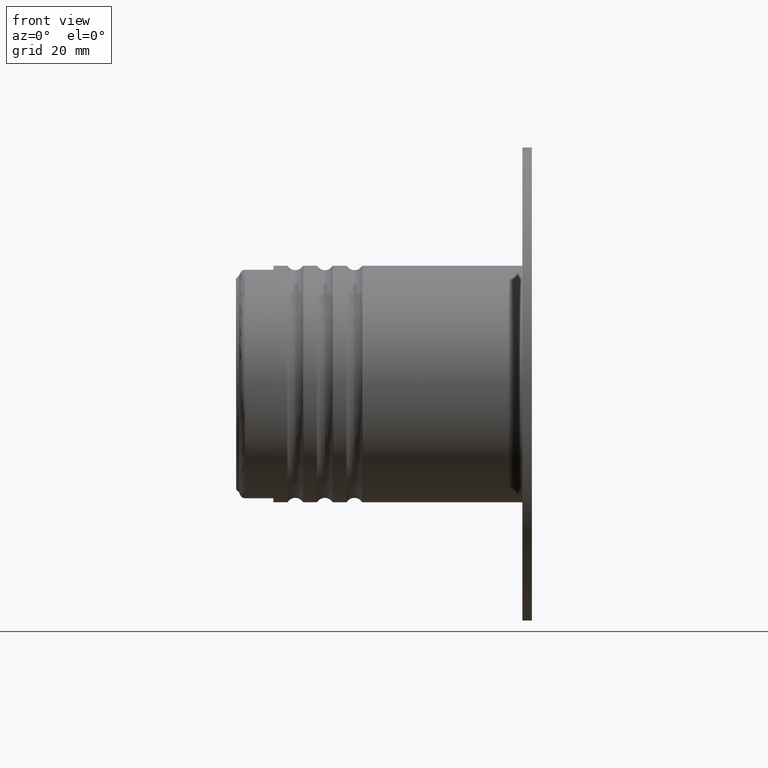
[diagram: clean part render]
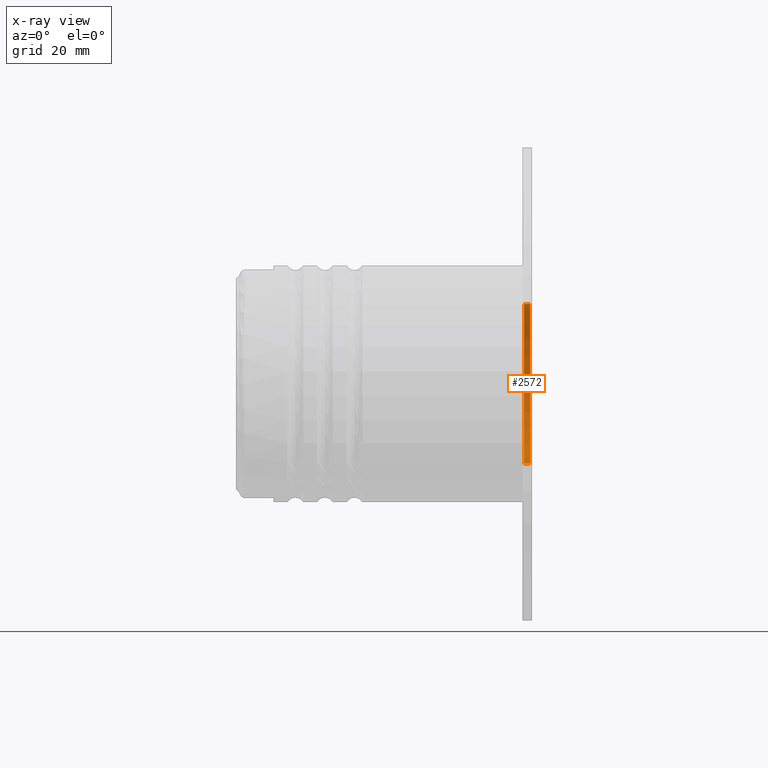
[diagram: x-ray — body ghosted, one internal face saturated and labeled with its STEP entity id]
A machine part, front view, then the same camera in x-ray: the body is ghosted and one INTERNAL B-rep face — a face not visible from any outside direction — is saturated and labeled: STEP entity #2572.
In plain terms, the highlighted cylindrical surface (partial cylindrical patch) has radius 13.5 mm, axis along (1, 0, 0).
Its self-contained STEP definition (entity closure, byte-faithful):
#11 = VERTEX_POINT ( 'NONE', #1303 ) ;
#161 = EDGE_LOOP ( 'NONE', ( #4088, #2899, #1397, #2566 ) ) ;
#435 = LINE ( 'NONE', #841, #3551 ) ;
#447 = DIRECTION ( 'NONE',  ( 0.0000000000000000000, 0.0000000000000000000, -1.000000000000000000 ) ) ;
#478 = DIRECTION ( 'NONE',  ( 0.0000000000000000000, 0.0000000000000000000, 1.000000000000000000 ) ) ;
#502 = FACE_OUTER_BOUND ( 'NONE', #161, .T. ) ;
#739 = CARTESIAN_POINT ( 'NONE',  ( -39.38376618407357910, 0.0000000000000000000, -13.50000000000000000 ) ) ;
#841 = CARTESIAN_POINT ( 'NONE',  ( -39.38376618407357910, 1.653273178848926867E-15, 13.50000000000000000 ) ) ;
#995 = VERTEX_POINT ( 'NONE', #1459 ) ;
#1103 = EDGE_CURVE ( 'NONE', #4029, #11, #3497, .T. ) ;
#1279 = AXIS2_PLACEMENT_3D ( 'NONE', #1477, #1383, #4744 ) ;
#1292 = CYLINDRICAL_SURFACE ( 'NONE', #3983, 13.50000000000000000 ) ;
#1303 = CARTESIAN_POINT ( 'NONE',  ( -0.09999999999998898659, 0.0000000000000000000, -13.50000000000000000 ) ) ;
#1383 = DIRECTION ( 'NONE',  ( 1.000000000000000000, 0.0000000000000000000, 0.0000000000000000000 ) ) ;
#1397 = ORIENTED_EDGE ( 'NONE', *, *, #1103, .T. ) ;
#1459 = CARTESIAN_POINT ( 'NONE',  ( -0.09999999999998898659, 1.653273178848926867E-15, 13.50000000000000000 ) ) ;
#1477 = CARTESIAN_POINT ( 'NONE',  ( -0.09999999999998898659, 0.0000000000000000000, 0.0000000000000000000 ) ) ;
#1486 = CIRCLE ( 'NONE', #1691, 13.50000000000000000 ) ;
#1656 = CARTESIAN_POINT ( 'NONE',  ( -1.100000000000017630, 1.653273178848926867E-15, 13.50000000000000000 ) ) ;
#1691 = AXIS2_PLACEMENT_3D ( 'NONE', #3405, #4709, #478 ) ;
#2057 = DIRECTION ( 'NONE',  ( 1.000000000000000000, -0.0000000000000000000, -0.0000000000000000000 ) ) ;
#2566 = ORIENTED_EDGE ( 'NONE', *, *, #3585, .T. ) ;
#2572 = ADVANCED_FACE ( 'NONE', ( #502 ), #1292, .F. ) ;
#2899 = ORIENTED_EDGE ( 'NONE', *, *, #2980, .T. ) ;
#2980 = EDGE_CURVE ( 'NONE', #5332, #4029, #1486, .T. ) ;
#3405 = CARTESIAN_POINT ( 'NONE',  ( -1.100000000000017630, 0.0000000000000000000, 0.0000000000000000000 ) ) ;
#3497 = LINE ( 'NONE', #739, #3564 ) ;
#3551 = VECTOR ( 'NONE', #2057, 1000.000000000000000 ) ;
#3564 = VECTOR ( 'NONE', #5329, 1000.000000000000000 ) ;
#3585 = EDGE_CURVE ( 'NONE', #11, #995, #4214, .T. ) ;
#3983 = AXIS2_PLACEMENT_3D ( 'NONE', #4665, #5064, #447 ) ;
#4029 = VERTEX_POINT ( 'NONE', #4782 ) ;
#4088 = ORIENTED_EDGE ( 'NONE', *, *, #5274, .F. ) ;
#4214 = CIRCLE ( 'NONE', #1279, 13.50000000000000000 ) ;
#4665 = CARTESIAN_POINT ( 'NONE',  ( -39.38376618407357910, 0.0000000000000000000, 0.0000000000000000000 ) ) ;
#4709 = DIRECTION ( 'NONE',  ( -1.000000000000000000, -0.0000000000000000000, -0.0000000000000000000 ) ) ;
#4744 = DIRECTION ( 'NONE',  ( 0.0000000000000000000, 0.0000000000000000000, -1.000000000000000000 ) ) ;
#4782 = CARTESIAN_POINT ( 'NONE',  ( -1.100000000000017630, 0.0000000000000000000, -13.50000000000000000 ) ) ;
#5064 = DIRECTION ( 'NONE',  ( 1.000000000000000000, -0.0000000000000000000, -0.0000000000000000000 ) ) ;
#5274 = EDGE_CURVE ( 'NONE', #5332, #995, #435, .T. ) ;
#5329 = DIRECTION ( 'NONE',  ( 1.000000000000000000, -0.0000000000000000000, -0.0000000000000000000 ) ) ;
#5332 = VERTEX_POINT ( 'NONE', #1656 ) ;